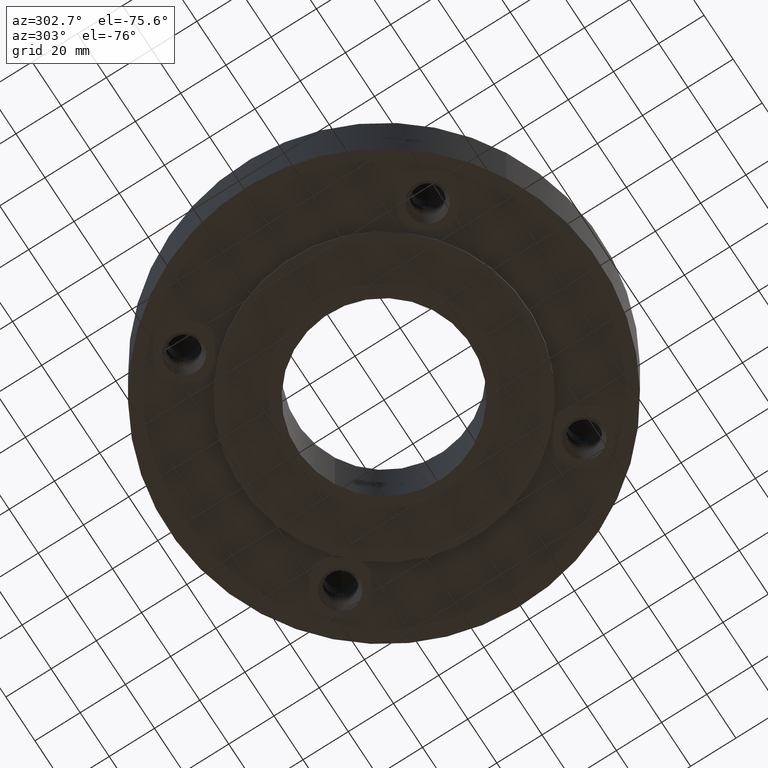
[diagram: clean part render]
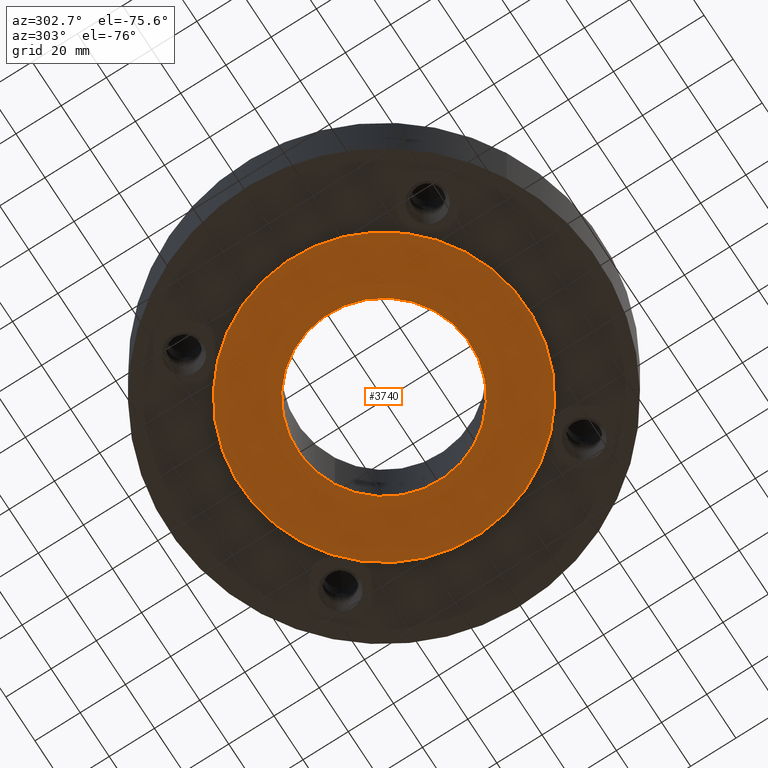
[diagram: same view with one face highlighted and labeled with its STEP entity id]
A machine part, auxiliary view. The second image highlights one B-rep face of the part: STEP entity #3740.
In plain terms, the highlighted planar face has unit normal (0, 0, -1).
Its self-contained STEP definition (entity closure, byte-faithful):
#3284=AXIS2_PLACEMENT_3D('Circle Axis2P3D',#3282,#3283,$) ;
#3310=AXIS2_PLACEMENT_3D('Circle Axis2P3D',#3308,#3309,$) ;
#3716=AXIS2_PLACEMENT_3D('Plane Axis2P3D',#3713,#3714,#3715) ;
#3724=AXIS2_PLACEMENT_3D('Circle Axis2P3D',#3722,#3723,$) ;
#3733=AXIS2_PLACEMENT_3D('Circle Axis2P3D',#3731,#3732,$) ;
#3282=CARTESIAN_POINT('Axis2P3D Location',(0.,0.,-0.0625000000003)) ;
#3286=CARTESIAN_POINT('Vertex',(1.19856384652,2.19395640473,-0.0625000000003)) ;
#3288=CARTESIAN_POINT('Vertex',(-1.19856384652,-2.19395640473,-0.0625000000003)) ;
#3308=CARTESIAN_POINT('Axis2P3D Location',(0.,0.,-0.0625000000003)) ;
#3713=CARTESIAN_POINT('Axis2P3D Location',(0.,2.50000000001,-0.0625000000003)) ;
#3722=CARTESIAN_POINT('Axis2P3D Location',(0.,0.,-0.0625000000003)) ;
#3726=CARTESIAN_POINT('Vertex',(0.719138307909,1.31637384284,-0.0625000000003)) ;
#3728=CARTESIAN_POINT('Vertex',(-0.719138307909,-1.31637384284,-0.0625000000003)) ;
#3731=CARTESIAN_POINT('Axis2P3D Location',(0.,0.,-0.0625000000003)) ;
#3283=DIRECTION('Axis2P3D Direction',(0.,0.,-0.0393700787402)) ;
#3309=DIRECTION('Axis2P3D Direction',(0.,0.,-0.0393700787402)) ;
#3714=DIRECTION('Axis2P3D Direction',(0.,0.,-0.0393700787402)) ;
#3715=DIRECTION('Axis2P3D XDirection',(0.0393700787402,0.,0.)) ;
#3723=DIRECTION('Axis2P3D Direction',(0.,0.,-0.0393700787402)) ;
#3732=DIRECTION('Axis2P3D Direction',(0.,0.,-0.0393700787402)) ;
#3719=ORIENTED_EDGE('',*,*,#3312,.T.) ;
#3720=ORIENTED_EDGE('',*,*,#3290,.T.) ;
#3737=ORIENTED_EDGE('',*,*,#3730,.F.) ;
#3738=ORIENTED_EDGE('',*,*,#3735,.F.) ;
#3739=FACE_BOUND('',#3736,.T.) ;
#3740=ADVANCED_FACE('PartBody',(#3721,#3739),#3717,.T.) ;
#3285=CIRCLE('generated circle',#3284,2.50000000001) ;
#3311=CIRCLE('generated circle',#3310,2.50000000001) ;
#3725=CIRCLE('generated circle',#3724,1.50000000001) ;
#3734=CIRCLE('generated circle',#3733,1.50000000001) ;
#3290=EDGE_CURVE('',#3287,#3289,#3285,.T.) ;
#3312=EDGE_CURVE('',#3289,#3287,#3311,.T.) ;
#3730=EDGE_CURVE('',#3727,#3729,#3725,.T.) ;
#3735=EDGE_CURVE('',#3729,#3727,#3734,.T.) ;
#3718=EDGE_LOOP('',(#3719,#3720)) ;
#3736=EDGE_LOOP('',(#3737,#3738)) ;
#3721=FACE_OUTER_BOUND('',#3718,.T.) ;
#3717=PLANE('',#3716) ;
#3287=VERTEX_POINT('',#3286) ;
#3289=VERTEX_POINT('',#3288) ;
#3727=VERTEX_POINT('',#3726) ;
#3729=VERTEX_POINT('',#3728) ;